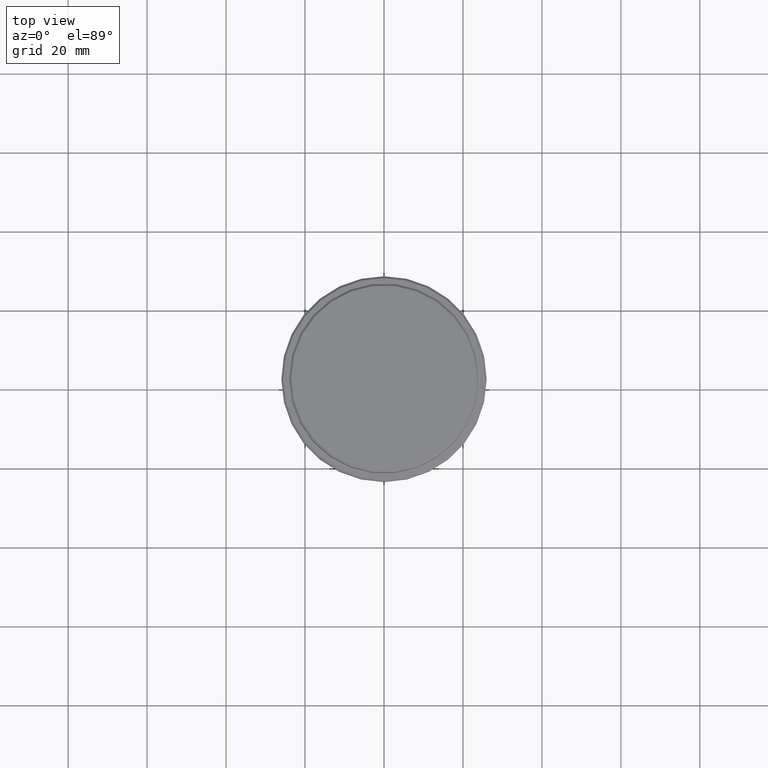
[diagram: clean part render]
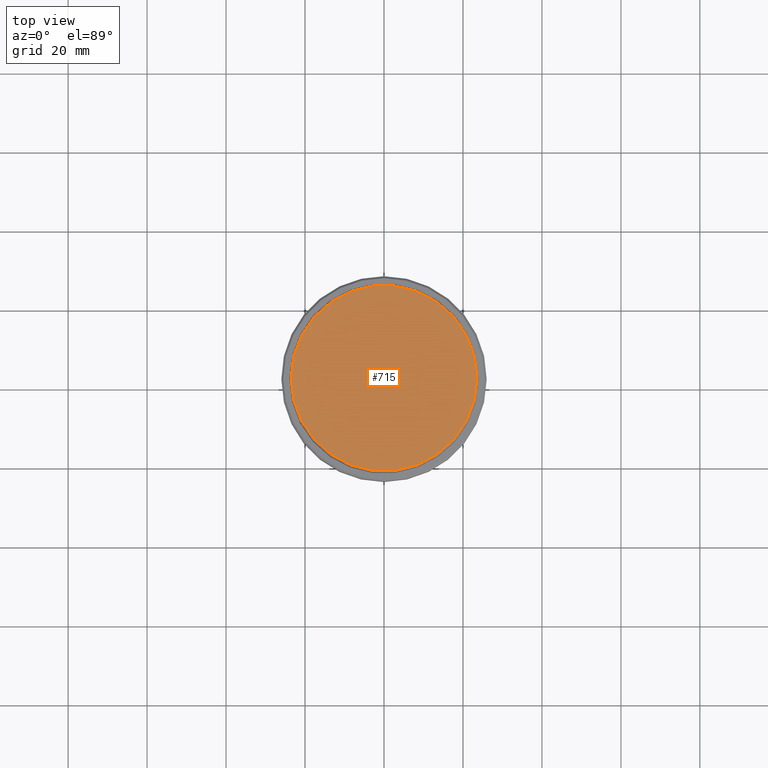
[diagram: same view with one face highlighted and labeled with its STEP entity id]
A machine part, top view. The second image highlights one B-rep face of the part: STEP entity #715.
In plain terms, the highlighted planar face has unit normal (0, -0, 1).
Its self-contained STEP definition (entity closure, byte-faithful):
#62 = AXIS2_PLACEMENT_3D ( 'NONE', #595, #1256, #217 ) ;
#109 = PLANE ( 'NONE',  #751 ) ;
#166 = DIRECTION ( 'NONE',  ( -0.000000000000000000, -0.000000000000000000, 1.000000000000000000 ) ) ;
#171 = EDGE_CURVE ( 'NONE', #493, #787, #382, .T. ) ;
#191 = AXIS2_PLACEMENT_3D ( 'NONE', #712, #166, #605 ) ;
#217 = DIRECTION ( 'NONE',  ( 1.000000000000000000, 0.000000000000000000, 0.000000000000000000 ) ) ;
#368 = ORIENTED_EDGE ( 'NONE', *, *, #723, .T. ) ;
#382 = CIRCLE ( 'NONE', #191, 23.49999999999999289 ) ;
#394 = CARTESIAN_POINT ( 'NONE',  ( 0.000000000000000000, 0.000000000000000000, 0.000000000000000000 ) ) ;
#493 = VERTEX_POINT ( 'NONE', #855 ) ;
#595 = CARTESIAN_POINT ( 'NONE',  ( 0.000000000000000000, 0.000000000000000000, 0.000000000000000000 ) ) ;
#605 = DIRECTION ( 'NONE',  ( 1.000000000000000000, 0.000000000000000000, 0.000000000000000000 ) ) ;
#712 = CARTESIAN_POINT ( 'NONE',  ( 0.000000000000000000, 0.000000000000000000, 0.000000000000000000 ) ) ;
#715 = ADVANCED_FACE ( 'NONE', ( #1100 ), #109, .T. ) ;
#723 = EDGE_CURVE ( 'NONE', #787, #493, #899, .T. ) ;
#751 = AXIS2_PLACEMENT_3D ( 'NONE', #394, #1283, #999 ) ;
#787 = VERTEX_POINT ( 'NONE', #937 ) ;
#855 = CARTESIAN_POINT ( 'NONE',  ( 23.49999999999999289, 2.908536147974962924E-15, 0.000000000000000000 ) ) ;
#898 = ORIENTED_EDGE ( 'NONE', *, *, #171, .T. ) ;
#899 = CIRCLE ( 'NONE', #62, 23.49999999999999289 ) ;
#937 = CARTESIAN_POINT ( 'NONE',  ( -23.49999999999999289, 0.000000000000000000, 0.000000000000000000 ) ) ;
#999 = DIRECTION ( 'NONE',  ( 1.000000000000000000, 0.000000000000000000, 0.000000000000000000 ) ) ;
#1100 = FACE_OUTER_BOUND ( 'NONE', #1194, .T. ) ;
#1194 = EDGE_LOOP ( 'NONE', ( #368, #898 ) ) ;
#1256 = DIRECTION ( 'NONE',  ( -0.000000000000000000, -0.000000000000000000, 1.000000000000000000 ) ) ;
#1283 = DIRECTION ( 'NONE',  ( 0.000000000000000000, -0.000000000000000000, 1.000000000000000000 ) ) ;